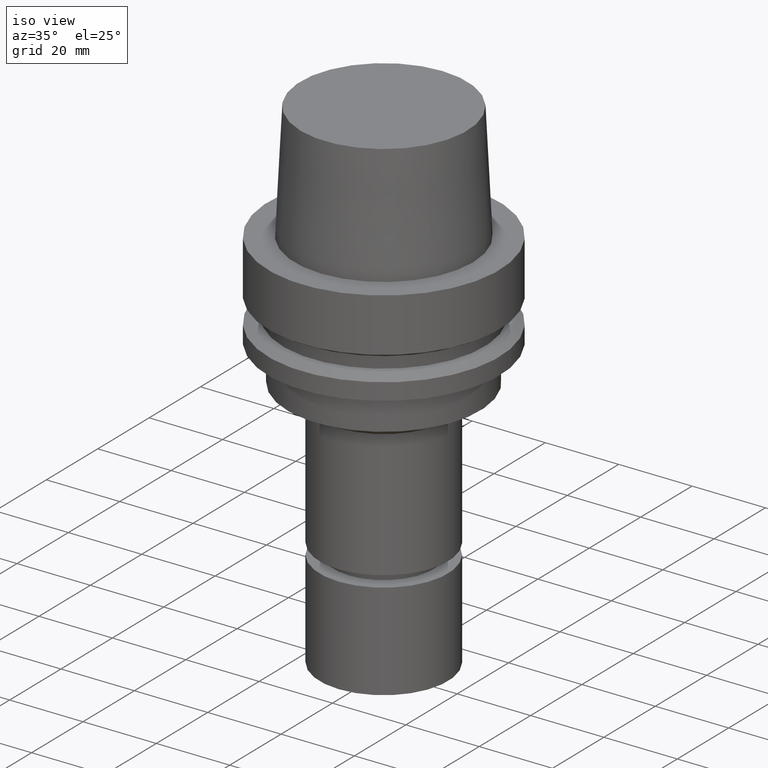
[diagram: clean part render]
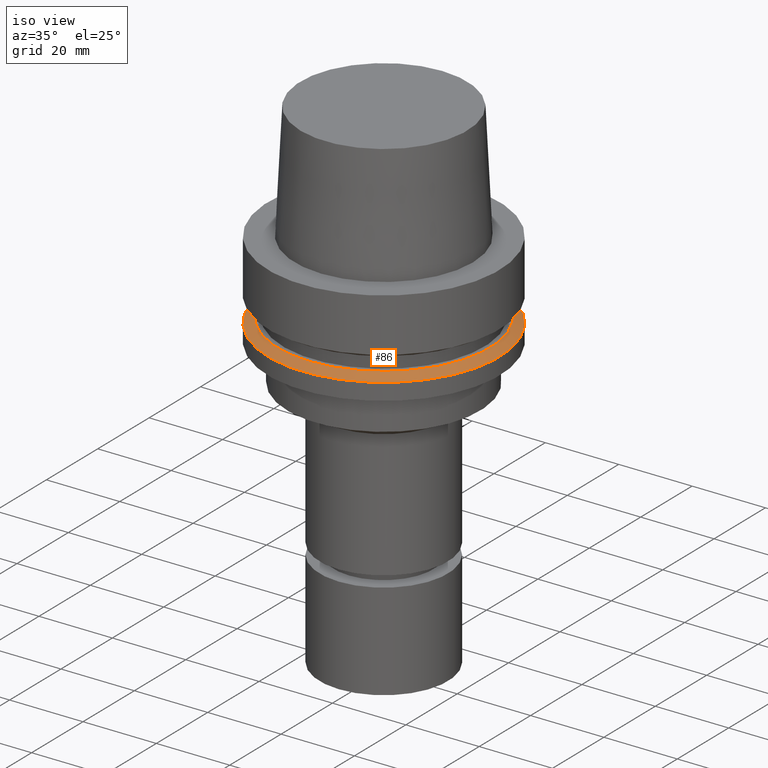
[diagram: same view with one face highlighted and labeled with its STEP entity id]
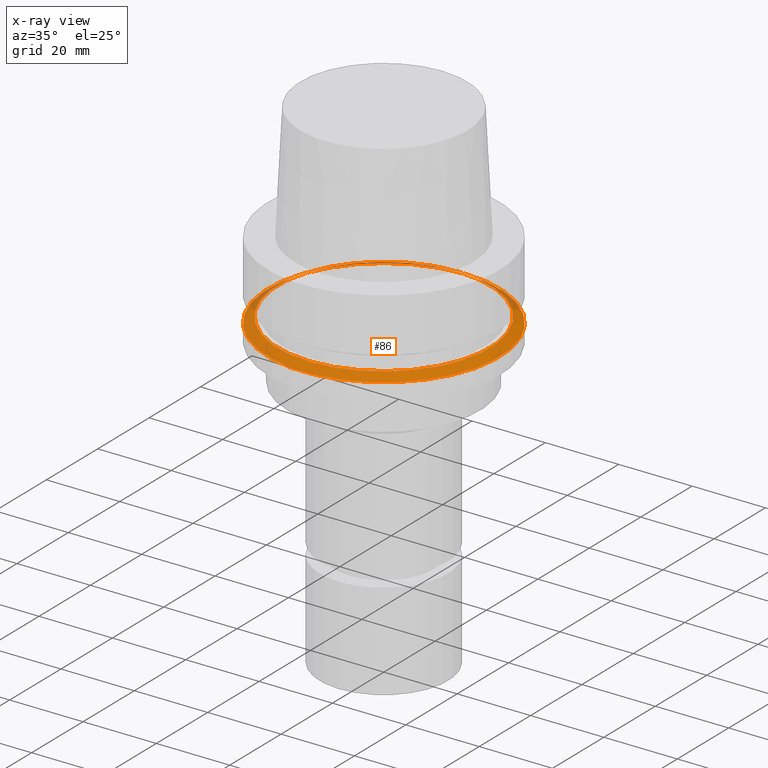
[diagram: x-ray of the same camera — body ghosted, the highlighted face saturated]
A machine part, iso view. The second image highlights one B-rep face of the part: STEP entity #86.
The next image is the same camera in x-ray: the body ghosted, the highlighted face saturated — about 11% of this face is hidden behind the body in this view.
In plain terms, the highlighted conical surface has half-angle 60 deg.
Its self-contained STEP definition (entity closure, byte-faithful):
#86=ADVANCED_FACE('Unnamed[1]',(#224,#225),#226,.T.);
#151=EDGE_CURVE('Unnamed[1]',#326,#326,#327,.T.);
#177=EDGE_CURVE('Unnamed[1]',#365,#365,#366,.T.);
#224=FACE_BOUND('',#417,.T.);
#225=FACE_BOUND('',#418,.T.);
#226=CONICAL_SURFACE('',#419,30.1987976320959,1.04719755119657);
#326=VERTEX_POINT('',#543);
#327=CIRCLE('',#544,31.5);
#365=VERTEX_POINT('',#593);
#366=CIRCLE('',#594,28.8975952641919);
#417=EDGE_LOOP('',(#638));
#418=EDGE_LOOP('',(#639));
#419=AXIS2_PLACEMENT_3D('',#640,#641,#642);
#543=CARTESIAN_POINT('',(1.30899429078397E-015,31.5,-21.3774990747592));
#544=AXIS2_PLACEMENT_3D('',#753,#754,#755);
#593=CARTESIAN_POINT('',(1.21699275665268E-015,28.8975952641919,-19.875));
#594=AXIS2_PLACEMENT_3D('',#796,#797,#798);
#638=ORIENTED_EDGE('',*,*,#177,.F.);
#639=ORIENTED_EDGE('',*,*,#151,.T.);
#640=CARTESIAN_POINT('',(1.26299352371833E-015,2.52598704743665E-015,-20.6262495373796));
#641=DIRECTION('',(6.12323399573677E-017,1.22464679914735E-016,-1.0));
#642=DIRECTION('',(-1.23259516440783E-032,1.0,1.22464679914735E-016));
#753=CARTESIAN_POINT('',(1.30899429078397E-015,2.61798858156794E-015,-21.3774990747592));
#754=DIRECTION('',(-6.12323399573677E-017,-1.22464679914735E-016,1.0));
#755=DIRECTION('',(-1.23259516440783E-032,1.0,1.22464679914735E-016));
#796=CARTESIAN_POINT('',(1.21699275665268E-015,2.43398551330536E-015,-19.875));
#797=DIRECTION('',(-6.12323399573677E-017,-1.22464679914735E-016,1.0));
#798=DIRECTION('',(-1.23259516440783E-032,1.0,1.22464679914735E-016));